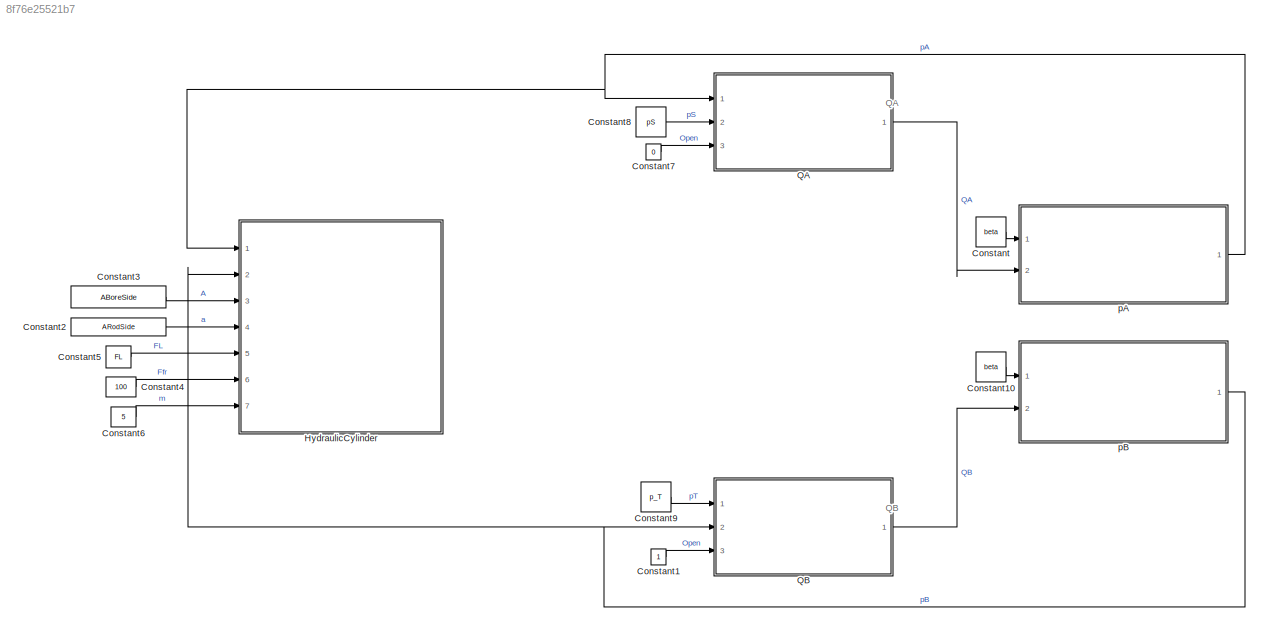
MODEL slx_8f76e25521b7
KIND model
CONFIG AbsTol = auto
CONFIG EnableMultiTasking = off
CONFIG FixedStep = 1e-3
CONFIG MaxStep = auto
CONFIG MinStep = auto
CONFIG RelTol = 1e-3
CONFIG SampleTimeConstraint = Unconstrained
CONFIG SolverName = FixedStepAuto
CONFIG StartTime = 0.0
CONFIG StopTime = 10.0
BLOCK [Constant] Constant
  Value = beta
BLOCK [Constant] Constant1
BLOCK [Constant] Constant10
  Value = beta
BLOCK [Constant] Constant2
  Value = ARodSide
BLOCK [Constant] Constant3
  Value = ABoreSide
BLOCK [Constant] Constant4
  Value = 100
BLOCK [Constant] Constant5
  Value = FL
BLOCK [Constant] Constant6
  Value = 5
BLOCK [Constant] Constant7
  Value = 0
BLOCK [Constant] Constant8
  Value = pS
BLOCK [Constant] Constant9
  Value = p_T
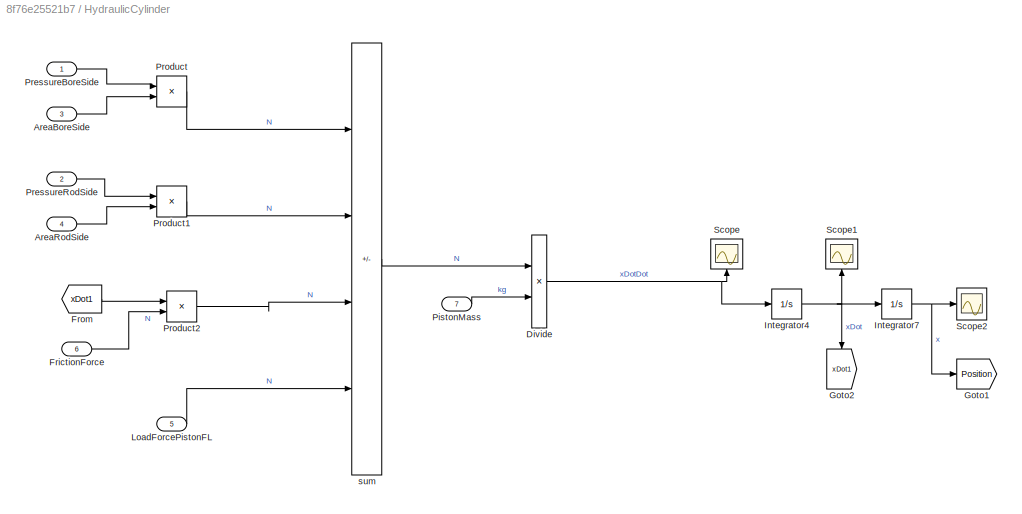
BLOCK [SubSystem] HydraulicCylinder
  Ports = [7]
  RequestExecContextInheritance = off
BLOCK [Inport] HydraulicCylinder/AreaBoreSide
  Port = 3
BLOCK [Inport] HydraulicCylinder/AreaRodSide
  Port = 4
BLOCK [Product] HydraulicCylinder/Divide 
  Inputs = */
  Ports = [2, 1]
BLOCK [Inport] HydraulicCylinder/FrictionForce
  Port = 6
BLOCK [From] HydraulicCylinder/From
  GotoTag = xDot1
  TagVisibility = global
BLOCK [Goto] HydraulicCylinder/Goto1
  GotoTag = Position
  TagVisibility = global
BLOCK [Goto] HydraulicCylinder/Goto2
  GotoTag = xDot1
  NameLocation = left
  TagVisibility = global
BLOCK [Integrator] HydraulicCylinder/Integrator4
  LimitOutput = on
  LowerSaturationLimit = -1
  Ports = [1, 1]
  UpperSaturationLimit = 1
BLOCK [Integrator] HydraulicCylinder/Integrator7
  InitialCondition = x0
  LimitOutput = on
  LowerSaturationLimit = 0
  Ports = [1, 1]
  UpperSaturationLimit = xmax
BLOCK [Inport] HydraulicCylinder/LoadForcePistonFL
  Port = 5
BLOCK [Inport] HydraulicCylinder/PistonMass
  Port = 7
BLOCK [Inport] HydraulicCylinder/PressureBoreSide
BLOCK [Inport] HydraulicCylinder/PressureRodSide
  Port = 2
BLOCK [Product] HydraulicCylinder/Product
  Ports = [2, 1]
BLOCK [Product] HydraulicCylinder/Product1
  Ports = [2, 1]
BLOCK [Product] HydraulicCylinder/Product2
  Ports = [2, 1]
BLOCK [Scope] HydraulicCylinder/Scope
  Floating = off
  NameLocation = right
  NumInputPorts = 1
  Ports = [1]
  ScopeSpecificationString = Simulink.scopes.TimeScopeBlockCfg('CurrentConfiguration', extmgr.ConfigurationSet(extmgr.Configuration('Core','General UI',true),extmgr.Configuration('Core','Source UI',true),extmgr.Configuration('Sources','WiredSimulink',true),extmgr.Configuration('Visuals','Time Domain',true,'SerializedDisplays',{struct('MinYLimReal','-530274489.34295','MaxYLimReal','60210490.36854','YLabelReal','','MinYLimMag',...<+1387ch>
BLOCK [Scope] HydraulicCylinder/Scope1
  Floating = off
  NameLocation = right
  NumInputPorts = 1
  Ports = [1]
  ScopeSpecificationString = Simulink.scopes.TimeScopeBlockCfg('CurrentConfiguration', extmgr.ConfigurationSet(extmgr.Configuration('Core','General UI',true),extmgr.Configuration('Core','Source UI',true),extmgr.Configuration('Sources','WiredSimulink',true,'DataLoggingVariableName','ScopeData1'),extmgr.Configuration('Visuals','Time Domain',true,'SerializedDisplays',{struct('MinYLimReal','0.52613','MaxYLimReal','1.07698','YLabe...<+1410ch>
BLOCK [Scope] HydraulicCylinder/Scope2
  Floating = off
  NumInputPorts = 1
  Ports = [1]
  ScopeSpecificationString = Simulink.scopes.TimeScopeBlockCfg('CurrentConfiguration', extmgr.ConfigurationSet(extmgr.Configuration('Core','General UI',true),extmgr.Configuration('Core','Source UI',true),extmgr.Configuration('Sources','WiredSimulink',true,'DataLoggingVariableName','ScopeData2'),extmgr.Configuration('Visuals','Time Domain',true,'SerializedDisplays',{struct('MinYLimReal','0.0075','MaxYLimReal','1.66583','YLabel...<+1384ch>
BLOCK [Sum] HydraulicCylinder/sum
  IconShape = rectangular
  Inputs = +---
  Ports = [4, 1]
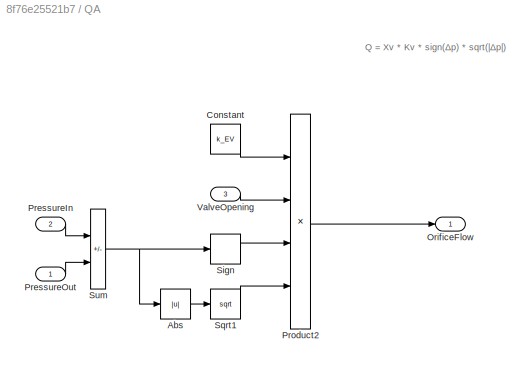
BLOCK [SubSystem] QA
  Ports = [3, 1]
  RequestExecContextInheritance = off
BLOCK [Abs] QA/Abs
  SaturateOnIntegerOverflow = off
BLOCK [Constant] QA/Constant
  Value = k_EV
BLOCK [Outport] QA/OrificeFlow
BLOCK [Inport] QA/PressureIn
  Port = 2
BLOCK [Inport] QA/PressureOut
BLOCK [Product] QA/Product2
  Inputs = 4
  Ports = [4, 1]
BLOCK [Signum] QA/Sign
BLOCK [Sqrt] QA/Sqrt1
BLOCK [Sum] QA/Sum
  IconShape = rectangular
  Inputs = +|-
  Ports = [2, 1]
BLOCK [Inport] QA/ValveOpening
  Port = 3
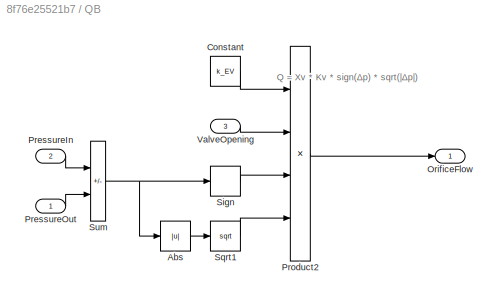
BLOCK [SubSystem] QB
  Ports = [3, 1]
  RequestExecContextInheritance = off
BLOCK [Abs] QB/Abs
  SaturateOnIntegerOverflow = off
BLOCK [Constant] QB/Constant
  Value = k_EV
BLOCK [Outport] QB/OrificeFlow
BLOCK [Inport] QB/PressureIn
  Port = 2
BLOCK [Inport] QB/PressureOut
BLOCK [Product] QB/Product2
  Inputs = 4
  Ports = [4, 1]
BLOCK [Signum] QB/Sign
BLOCK [Sqrt] QB/Sqrt1
BLOCK [Sum] QB/Sum
  IconShape = rectangular
  Inputs = +|-
  Ports = [2, 1]
BLOCK [Inport] QB/ValveOpening
  Port = 3
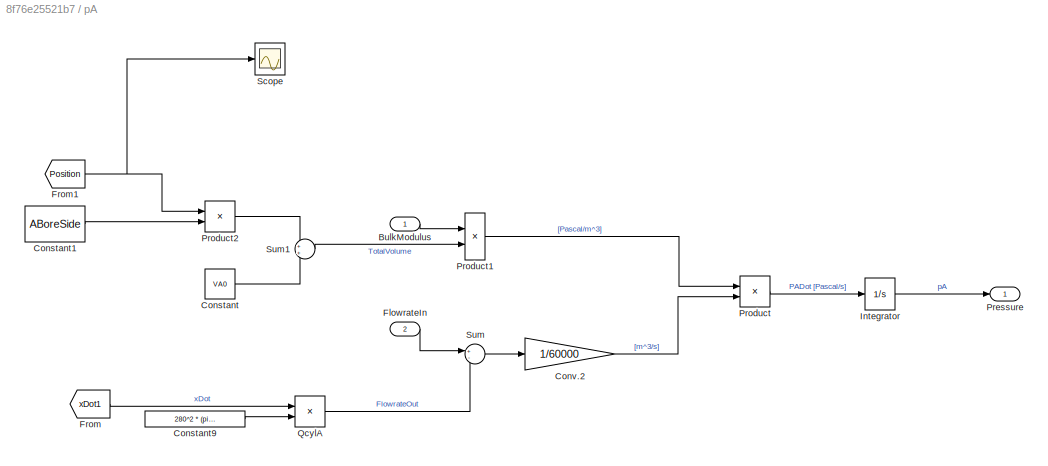
BLOCK [SubSystem] pA
  Ports = [2, 1]
  RequestExecContextInheritance = off
BLOCK [Inport] pA/BulkModulus
  NameLocation = left
BLOCK [Constant] pA/Constant
  Value = VA0
BLOCK [Constant] pA/Constant1
  Value = ABoreSide
BLOCK [Constant] pA/Constant9
  Value = 280^2 * (pi/4)
BLOCK [Gain] pA/Conv.2
  Gain = 1/60000
  NameLocation = top
BLOCK [Inport] pA/FlowrateIn
  NameLocation = left
  Port = 2
BLOCK [From] pA/From
  GotoTag = xDot1
  TagVisibility = global
BLOCK [From] pA/From1
  GotoTag = Position
  TagVisibility = global
BLOCK [Integrator] pA/Integrator
  InitialCondition = pA0
  LimitOutput = on
  LowerSaturationLimit = pAMin
  Ports = [1, 1]
  UpperSaturationLimit = pAMax
BLOCK [Outport] pA/Pressure
BLOCK [Product] pA/Product
  Ports = [2, 1]
BLOCK [Product] pA/Product1
  Inputs = */
  Ports = [2, 1]
BLOCK [Product] pA/Product2
  Ports = [2, 1]
BLOCK [Product] pA/QcylA
  Ports = [2, 1]
BLOCK [Scope] pA/Scope
  Floating = off
  NumInputPorts = 1
  Ports = [1]
  ScopeSpecificationString = Simulink.scopes.TimeScopeBlockCfg('CurrentConfiguration', extmgr.ConfigurationSet(extmgr.Configuration('Core','General UI',true),extmgr.Configuration('Core','Source UI',true),extmgr.Configuration('Sources','WiredSimulink',true,'DataLoggingVariableName','ScopeData3'),extmgr.Configuration('Visuals','Time Domain',true,'SerializedDisplays',{struct('MinYLimReal','0.0075','MaxYLimReal','1.66583','YLabel...<+1356ch>
BLOCK [Sum] pA/Sum
  Inputs = +-
  Ports = [2, 1]
BLOCK [Sum] pA/Sum1
  Ports = [2, 1]
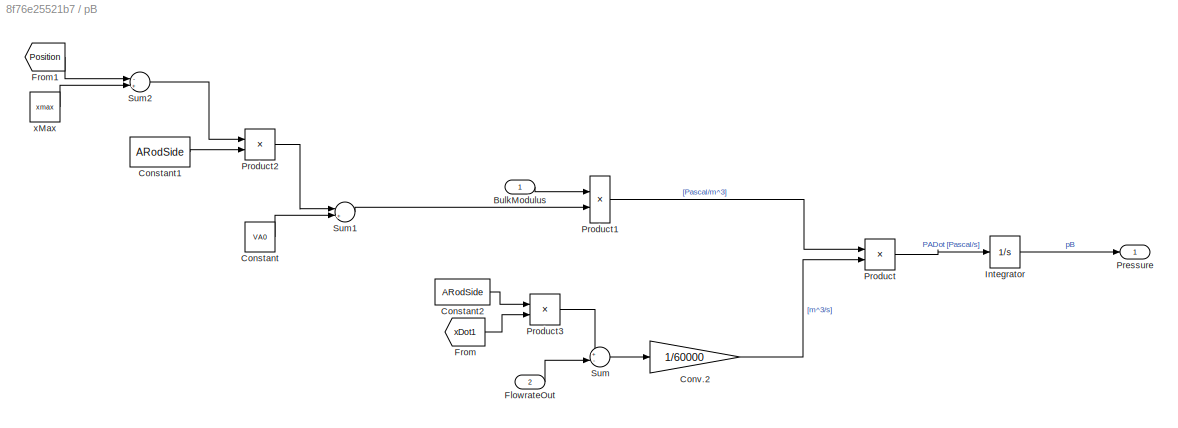
BLOCK [SubSystem] pB
  Ports = [2, 1]
  RequestExecContextInheritance = off
BLOCK [Inport] pB/BulkModulus
  NameLocation = left
BLOCK [Constant] pB/Constant
  Value = VA0
BLOCK [Constant] pB/Constant1
  Value = ARodSide
BLOCK [Constant] pB/Constant2
  Value = ARodSide
BLOCK [Gain] pB/Conv.2
  Gain = 1/60000
  NameLocation = top
BLOCK [Inport] pB/FlowrateOut
  NameLocation = left
  Port = 2
BLOCK [From] pB/From
  GotoTag = xDot1
  TagVisibility = global
BLOCK [From] pB/From1
  GotoTag = Position
  TagVisibility = global
BLOCK [Integrator] pB/Integrator
  InitialCondition = pB0
  LimitOutput = on
  LowerSaturationLimit = pAMin
  Ports = [1, 1]
  UpperSaturationLimit = pAMax
BLOCK [Outport] pB/Pressure
BLOCK [Product] pB/Product
  Ports = [2, 1]
BLOCK [Product] pB/Product1
  Inputs = */
  Ports = [2, 1]
BLOCK [Product] pB/Product2
  Ports = [2, 1]
BLOCK [Product] pB/Product3
  Ports = [2, 1]
BLOCK [Sum] pB/Sum
  Inputs = +-
  Ports = [2, 1]
BLOCK [Sum] pB/Sum1
  Inputs = |++
  Ports = [2, 1]
BLOCK [Sum] pB/Sum2
  Inputs = -+
  Ports = [2, 1]
BLOCK [Constant] pB/xMax
  Value = xmax
ANNOTATION (root): QA
ANNOTATION (root): QB
ANNOTATION QA: Q = Xv * Kv * sign(Δp) * sqrt(|Δp|)
ANNOTATION QB: Q = Xv * Kv * sign(Δp) * sqrt(|Δp|)
LINE Constant10:1 -> pB:1
LINE Constant1:1 -> QB:3
LINE Constant2:1 -> HydraulicCylinder:4
LINE Constant3:1 -> HydraulicCylinder:3
LINE Constant4:1 -> HydraulicCylinder:6
LINE Constant5:1 -> HydraulicCylinder:5
LINE Constant6:1 -> HydraulicCylinder:7
LINE Constant7:1 -> QA:3
LINE Constant8:1 -> QA:2
LINE Constant9:1 -> QB:1
LINE Constant:1 -> pA:1
LINE HydraulicCylinder/AreaBoreSide:1 -> HydraulicCylinder/Product:2
LINE HydraulicCylinder/AreaRodSide:1 -> HydraulicCylinder/Product1:2
NET HydraulicCylinder/Divide :1 -> HydraulicCylinder/Integrator4:1, HydraulicCylinder/Scope:1
LINE HydraulicCylinder/FrictionForce:1 -> HydraulicCylinder/Product2:2
LINE HydraulicCylinder/From:1 -> HydraulicCylinder/Product2:1
NET HydraulicCylinder/Integrator4:1 -> HydraulicCylinder/Goto2:1, HydraulicCylinder/Integrator7:1, HydraulicCylinder/Scope1:1
NET HydraulicCylinder/Integrator7:1 -> HydraulicCylinder/Goto1:1, HydraulicCylinder/Scope2:1
LINE HydraulicCylinder/LoadForcePistonFL:1 -> HydraulicCylinder/sum:4
LINE HydraulicCylinder/PistonMass:1 -> HydraulicCylinder/Divide :2
LINE HydraulicCylinder/PressureBoreSide:1 -> HydraulicCylinder/Product:1
LINE HydraulicCylinder/PressureRodSide:1 -> HydraulicCylinder/Product1:1
LINE HydraulicCylinder/Product1:1 -> HydraulicCylinder/sum:2
LINE HydraulicCylinder/Product2:1 -> HydraulicCylinder/sum:3
LINE HydraulicCylinder/Product:1 -> HydraulicCylinder/sum:1
LINE HydraulicCylinder/sum:1 -> HydraulicCylinder/Divide :1
LINE QA/Abs:1 -> QA/Sqrt1:1
LINE QA/Constant:1 -> QA/Product2:1
LINE QA/PressureIn:1 -> QA/Sum:1
LINE QA/PressureOut:1 -> QA/Sum:2
LINE QA/Product2:1 -> QA/OrificeFlow:1
LINE QA/Sign:1 -> QA/Product2:3
LINE QA/Sqrt1:1 -> QA/Product2:4
NET QA/Sum:1 -> QA/Abs:1, QA/Sign:1
LINE QA/ValveOpening:1 -> QA/Product2:2
LINE QA:1 -> pA:2
LINE QB/Abs:1 -> QB/Sqrt1:1
LINE QB/Constant:1 -> QB/Product2:1
LINE QB/PressureIn:1 -> QB/Sum:1
LINE QB/PressureOut:1 -> QB/Sum:2
LINE QB/Product2:1 -> QB/OrificeFlow:1
LINE QB/Sign:1 -> QB/Product2:3
LINE QB/Sqrt1:1 -> QB/Product2:4
NET QB/Sum:1 -> QB/Abs:1, QB/Sign:1
LINE QB/ValveOpening:1 -> QB/Product2:2
LINE QB:1 -> pB:2
LINE pA/BulkModulus:1 -> pA/Product1:1
LINE pA/Constant1:1 -> pA/Product2:2
LINE pA/Constant9:1 -> pA/QcylA:2
LINE pA/Constant:1 -> pA/Sum1:2
LINE pA/Conv.2:1 -> pA/Product:2
LINE pA/FlowrateIn:1 -> pA/Sum:1
NET pA/From1:1 -> pA/Product2:1, pA/Scope:1
LINE pA/From:1 -> pA/QcylA:1
LINE pA/Integrator:1 -> pA/Pressure:1
LINE pA/Product1:1 -> pA/Product:1
LINE pA/Product2:1 -> pA/Sum1:1
LINE pA/Product:1 -> pA/Integrator:1
LINE pA/QcylA:1 -> pA/Sum:2
LINE pA/Sum1:1 -> pA/Product1:2
LINE pA/Sum:1 -> pA/Conv.2:1
NET pA:1 -> HydraulicCylinder:1, QA:1
LINE pB/BulkModulus:1 -> pB/Product1:1
LINE pB/Constant1:1 -> pB/Product2:2
LINE pB/Constant2:1 -> pB/Product3:1
LINE pB/Constant:1 -> pB/Sum1:2
LINE pB/Conv.2:1 -> pB/Product:2
LINE pB/FlowrateOut:1 -> pB/Sum:2
LINE pB/From1:1 -> pB/Sum2:1
LINE pB/From:1 -> pB/Product3:2
LINE pB/Integrator:1 -> pB/Pressure:1
LINE pB/Product1:1 -> pB/Product:1
LINE pB/Product2:1 -> pB/Sum1:1
LINE pB/Product3:1 -> pB/Sum:1
LINE pB/Product:1 -> pB/Integrator:1
LINE pB/Sum1:1 -> pB/Product1:2
LINE pB/Sum2:1 -> pB/Product2:1
LINE pB/Sum:1 -> pB/Conv.2:1
LINE pB/xMax:1 -> pB/Sum2:2
NET pB:1 -> HydraulicCylinder:2, QB:2
note: NET lines group one-source signal fan-out (src -> all destinations, sorted); 1:1 wires keep LINE
